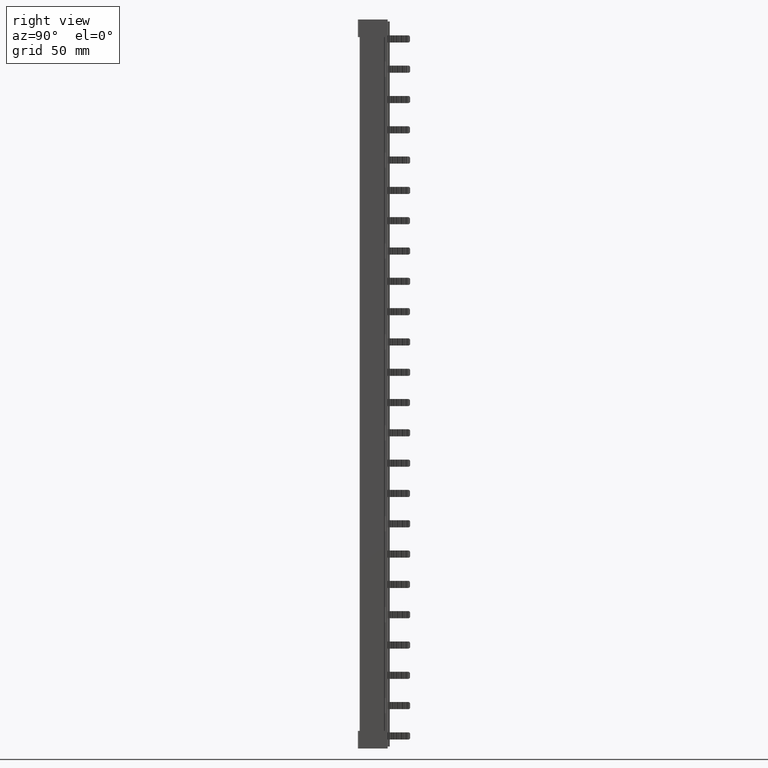
[diagram: clean part render]
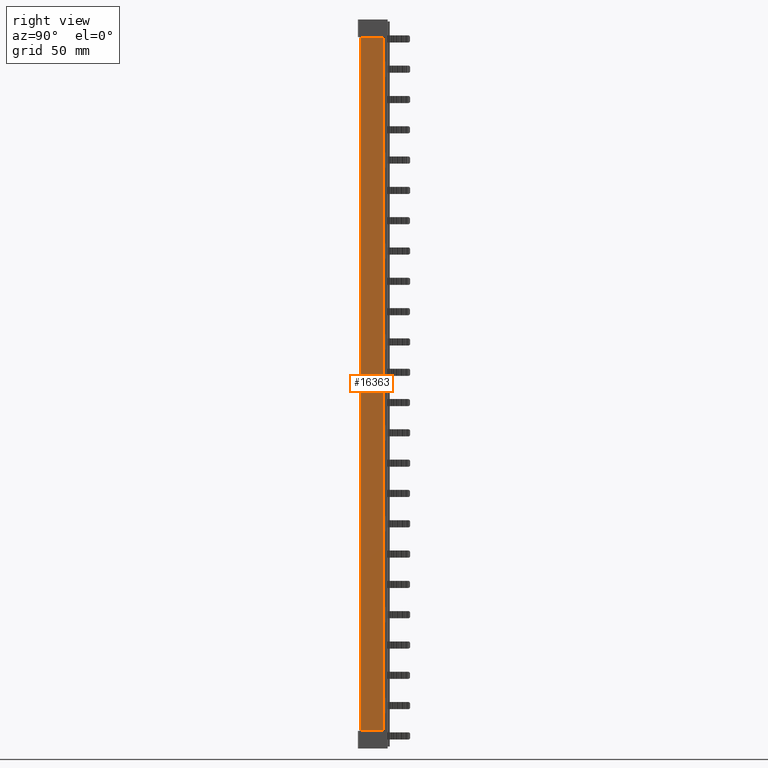
[diagram: same view with one face highlighted and labeled with its STEP entity id]
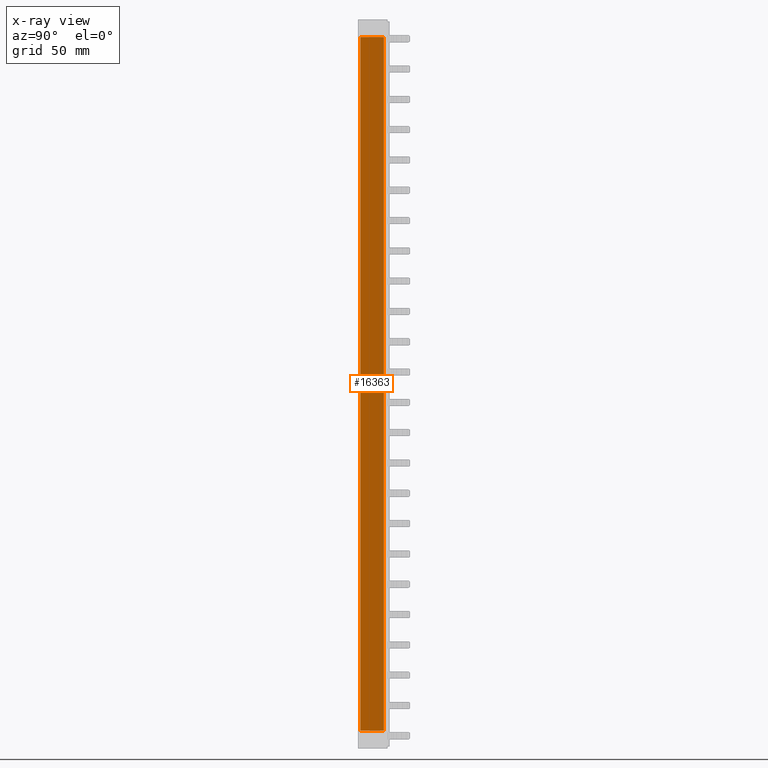
[diagram: x-ray of the same camera — body ghosted, the highlighted face saturated]
A machine part, right view. The second image highlights one B-rep face of the part: STEP entity #16363.
The next image is the same camera in x-ray: the body ghosted, the highlighted face saturated — about 0% of this face is hidden behind the body in this view.
In plain terms, the highlighted planar face has unit normal (1, -0, 0).
Its self-contained STEP definition (entity closure, byte-faithful):
#3145 = VECTOR ( 'NONE', #37505, 1000.000000000000000 ) ;
#3192 = VECTOR ( 'NONE', #37311, 1000.000000000000000 ) ;
#7476 = EDGE_CURVE ( 'NONE', #41584, #41590, #15479, .T. ) ;
#8138 = EDGE_CURVE ( 'NONE', #41584, #41657, #17640, .T. ) ;
#14098 = CARTESIAN_POINT ( 'NONE',  ( 13.67637477970029600, 0.4999999999992788000, 219.0000000000000000 ) ) ;
#14379 = DIRECTION ( 'NONE',  ( 0.0000000000000000000, 0.0000000000000000000, -1.000000000000000000 ) ) ;
#15469 = DIRECTION ( 'NONE',  ( 0.0000000000000000000, 1.000000000000000000, 0.0000000000000000000 ) ) ;
#15477 = CARTESIAN_POINT ( 'NONE',  ( 13.67637477970029600, -8.991461328757370800, 208.6000000000518100 ) ) ;
#15479 = LINE ( 'NONE', #15477, #40295 ) ;
#15974 = CARTESIAN_POINT ( 'NONE',  ( 13.67637477970029600, 14.29107189157535500, -199.6000000000518100 ) ) ;
#16044 = CARTESIAN_POINT ( 'NONE',  ( 13.67637477970029600, 14.29107189157535500, 208.6000000000518100 ) ) ;
#16116 = CARTESIAN_POINT ( 'NONE',  ( 13.67637477970029600, 0.4999999999992788000, 208.6000000000518100 ) ) ;
#16246 = CARTESIAN_POINT ( 'NONE',  ( 13.67637477970029600, 0.4999999999992788000, -199.6000000000518100 ) ) ;
#16363 = ADVANCED_FACE ( 'NONE', ( #19893 ), #19870, .T. ) ;
#17640 = LINE ( 'NONE', #14098, #33056 ) ;
#19845 = DIRECTION ( 'NONE',  ( 0.0000000000000000000, 0.0000000000000000000, -1.000000000000000000 ) ) ;
#19849 = CARTESIAN_POINT ( 'NONE',  ( 13.67637477970029600, -8.991461328757370800, 219.0000000000000000 ) ) ;
#19854 = DIRECTION ( 'NONE',  ( 1.000000000000000000, -0.0000000000000000000, 0.0000000000000000000 ) ) ;
#19870 = PLANE ( 'NONE',  #35623 ) ;
#19893 = FACE_OUTER_BOUND ( 'NONE', #26241, .T. ) ;
#23616 = ORIENTED_EDGE ( 'NONE', *, *, #8138, .T. ) ;
#23621 = ORIENTED_EDGE ( 'NONE', *, *, #31916, .F. ) ;
#23623 = ORIENTED_EDGE ( 'NONE', *, *, #31933, .T. ) ;
#23646 = ORIENTED_EDGE ( 'NONE', *, *, #7476, .F. ) ;
#26241 = EDGE_LOOP ( 'NONE', ( #23616, #23621, #23623, #23646 ) ) ;
#31916 = EDGE_CURVE ( 'NONE', #38418, #41657, #37153, .T. ) ;
#31933 = EDGE_CURVE ( 'NONE', #38418, #41590, #37465, .T. ) ;
#33056 = VECTOR ( 'NONE', #14379, 1000.000000000000000 ) ;
#35623 = AXIS2_PLACEMENT_3D ( 'NONE', #19849, #19854, #19845 ) ;
#37084 = CARTESIAN_POINT ( 'NONE',  ( 13.67637477970029600, -8.991461328757370800, -199.6000000000518100 ) ) ;
#37153 = LINE ( 'NONE', #37084, #3192 ) ;
#37311 = DIRECTION ( 'NONE',  ( 0.0000000000000000000, -1.000000000000000000, 0.0000000000000000000 ) ) ;
#37431 = CARTESIAN_POINT ( 'NONE',  ( 13.67637477970029600, 14.29107189157535500, 219.0000000000000000 ) ) ;
#37465 = LINE ( 'NONE', #37431, #3145 ) ;
#37505 = DIRECTION ( 'NONE',  ( -0.0000000000000000000, -0.0000000000000000000, 1.000000000000000000 ) ) ;
#38418 = VERTEX_POINT ( 'NONE', #15974 ) ;
#40295 = VECTOR ( 'NONE', #15469, 1000.000000000000000 ) ;
#41584 = VERTEX_POINT ( 'NONE', #16116 ) ;
#41590 = VERTEX_POINT ( 'NONE', #16044 ) ;
#41657 = VERTEX_POINT ( 'NONE', #16246 ) ;